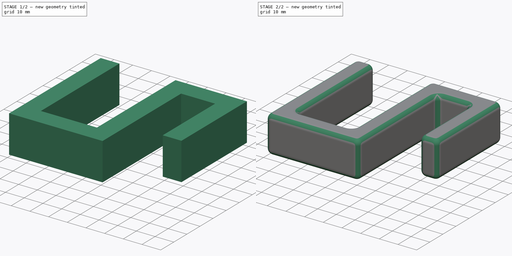
[diagram: build sequence overview — one tinted view per stage of 2, left to right]
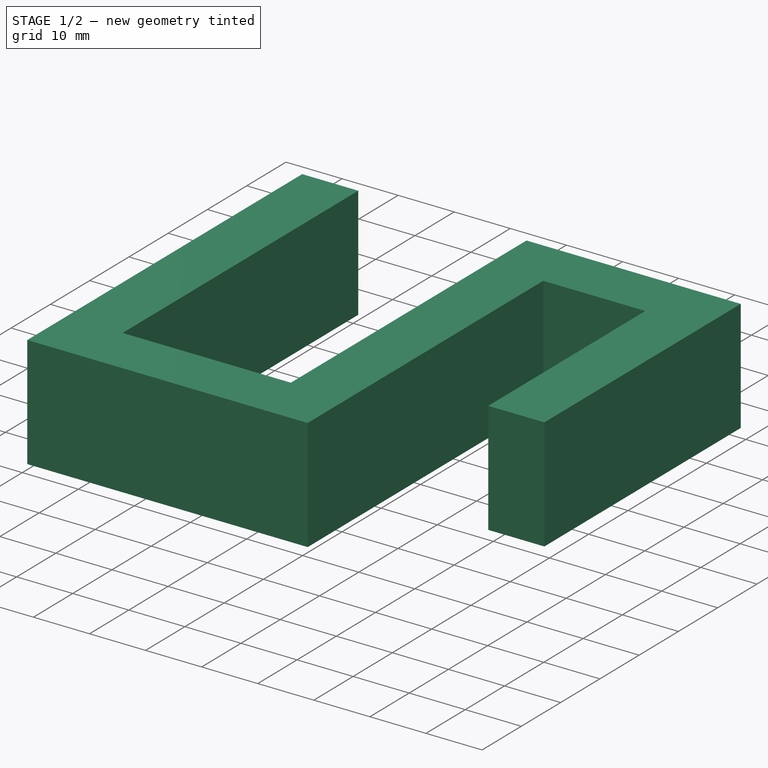
[diagram: stage 1 of 2 — iso view after this stage's code; geometry added in this stage tinted green]
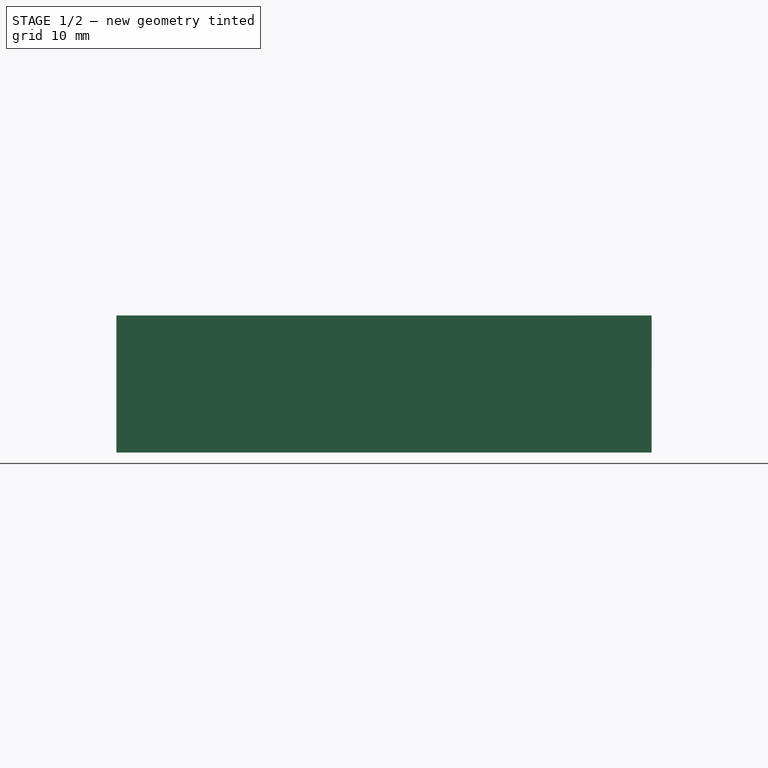
[diagram: stage 1 of 2 — front view after this stage's code; geometry added in this stage tinted green]
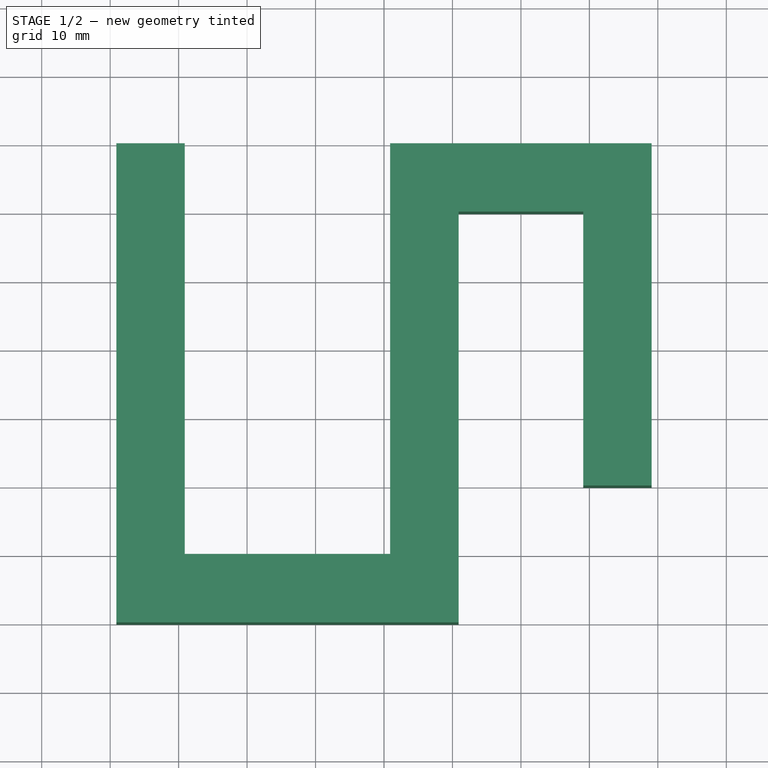
[diagram: stage 1 of 2 — top view after this stage's code; geometry added in this stage tinted green]
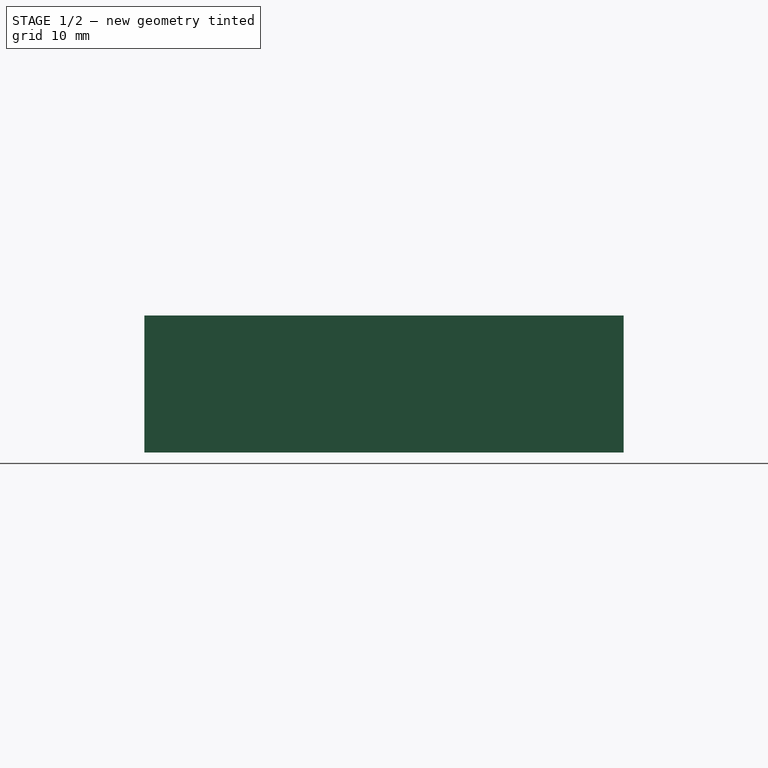
[diagram: stage 1 of 2 — right view after this stage's code; geometry added in this stage tinted green]
FCSTD DOCUMENT  (FreeCAD 1.0R39109 (Git))
Label: Model
License: All rights reserved
LicenseURL: https://en.wikipedia.org/wiki/All_rights_reserved
objects: Sketcher::SketchObject×1, PartDesign::Pad×1, PartDesign::Fillet×1, PartDesign::Body×1
note: 9 computed .brp shape members not serialized (recipe doc carries the construction recipe); baked Part::Feature solids carry a one-line shape summary decoded from their .brp

FEATURE [Sketcher::SketchObject] Sketch
  ArcFitTolerance = 1e-06
  AttachmentSupport = -> [XY_Plane]
  FullyConstrained = true
  MakeInternals = false
  MapMode = 5
  expr: Constraints[32] = 18.2 + 20
  sketch-geometry (12):
    g0: LineSegment StartX=9.1 StartY=0 StartZ=0 EndX=9.1 EndY=-40 EndZ=0
    g1: LineSegment StartX=9.1 StartY=-40 StartZ=0 EndX=19.1 EndY=-40 EndZ=0
    g2: LineSegment StartX=19.1 StartY=-40 StartZ=0 EndX=19.1 EndY=10 EndZ=0
    g3: LineSegment StartX=19.1 StartY=10 StartZ=0 EndX=-19.1 EndY=10 EndZ=0
    g4: LineSegment StartX=-19.1 StartY=10 StartZ=0 EndX=-19.1 EndY=-50 EndZ=0
    g5: LineSegment StartX=-19.1 StartY=-50 StartZ=0 EndX=-49.1 EndY=-50 EndZ=0
    g6: LineSegment StartX=-49.1 StartY=-50 StartZ=0 EndX=-49.1 EndY=10 EndZ=0
    g7: LineSegment StartX=-49.1 StartY=10 StartZ=0 EndX=-59.1 EndY=10 EndZ=0
    g8: LineSegment StartX=-59.1 StartY=10 StartZ=0 EndX=-59.1 EndY=-60 EndZ=0
    g9: LineSegment StartX=-59.1 StartY=-60 StartZ=0 EndX=-9.1 EndY=-60 EndZ=0
    g10: LineSegment StartX=-9.1 StartY=-60 StartZ=0 EndX=-9.1 EndY=0 EndZ=0
    g11: LineSegment StartX=-9.1 StartY=0 StartZ=0 EndX=9.1 EndY=0 EndZ=0
  constraints (35):
    c: PointOnObject(g0,g-1)
    c: Vertical(g0)
    c: Coincident(g0,g1)
    c: Horizontal(g1)
    c: Coincident(g1,g2)
    c: Vertical(g2)
    c: Coincident(g2,g3)
    c: Coincident(g3,g4)
    c: Vertical(g4)
    c: Coincident(g4,g5)
    c: Horizontal(g5)
    c: Coincident(g5,g6)
    c: Vertical(g6)
    c: Coincident(g6,g7)
    c: Horizontal(g7)
    c: Coincident(g7,g8)
    c: Vertical(g8)
    c: Coincident(g8,g9)
    c: Horizontal(g9)
    c: Coincident(g9,g10)
    c: Vertical(g10)
    c: Coincident(g10,g11)
    c: Coincident(g11,g0)
    c: DistanceY(g0,g0) = 40
    c: Distance(g11,g11) = 18.2
    c: Horizontal(g3)
    c: DistanceY(g2,g2) = 50
    c: Distance(g1,g1) = 10
    c: Symmetric(g10,g0,g-1)
    c: DistanceX(g5,g5) = 30
    c: DistanceY(g10,g10) = 60
    c: DistanceX(g9,g9) = 50
    c: Distance(g3,g3) = 38.2
    c: DistanceY(g4,g4) = 60
    c: Horizontal(g6,g3)
FEATURE [PartDesign::Pad] Pad
  Direction = (0,0,1)
  Length = 20
  Length2 = 10
  Profile = -> Sketch
  ReferenceAxis = -> Sketch [N_Axis]
  Refine = true
  Suppressed = false
  Type = 0
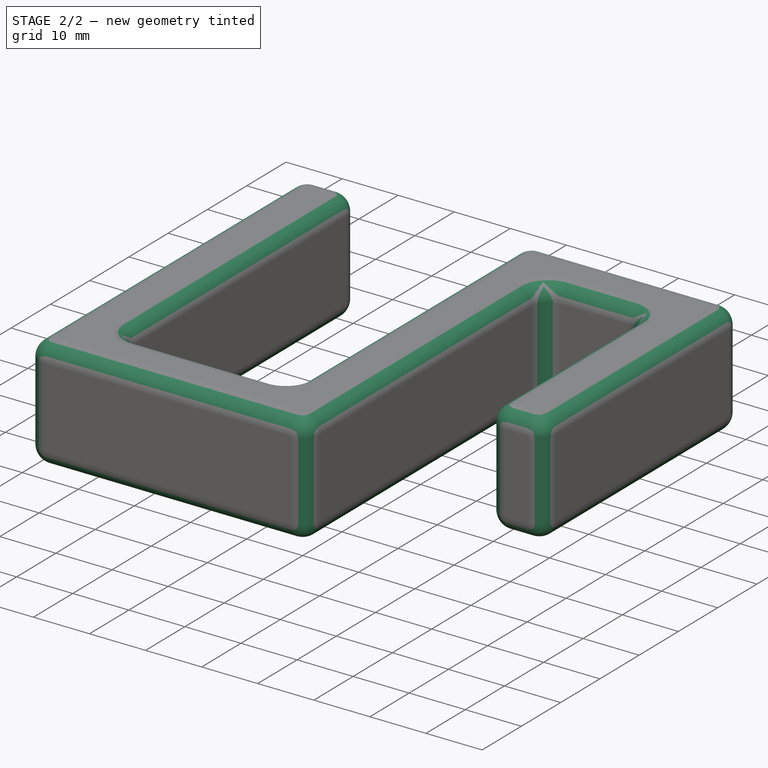
[diagram: stage 2 of 2 — iso view after this stage's code; geometry added in this stage tinted green]
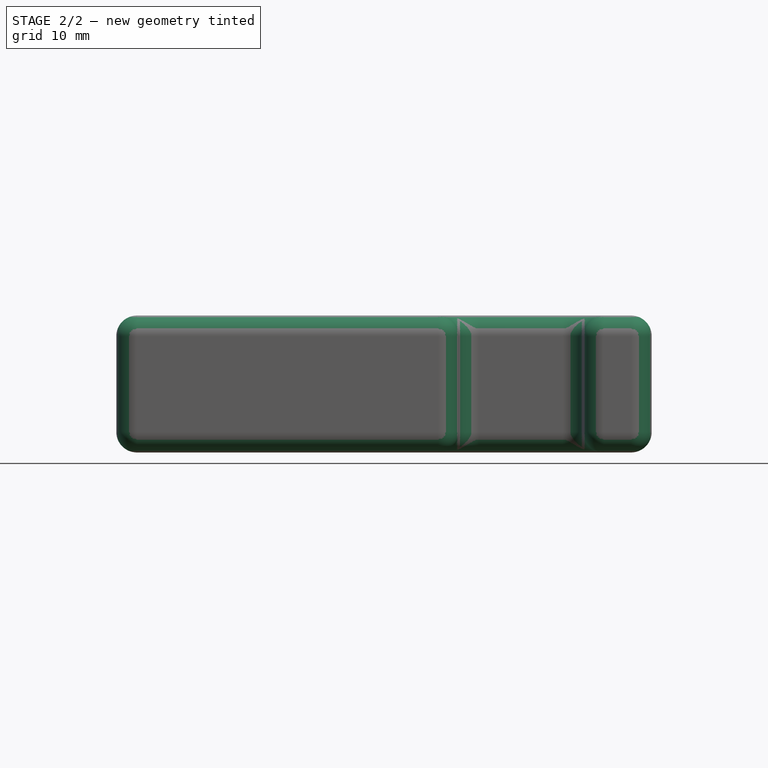
[diagram: stage 2 of 2 — front view after this stage's code; geometry added in this stage tinted green]
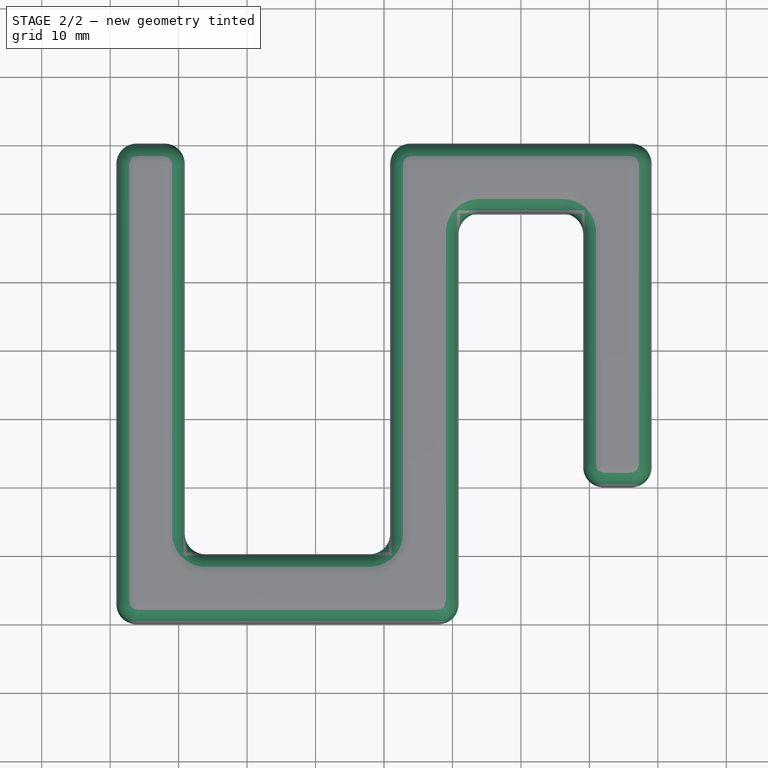
[diagram: stage 2 of 2 — top view after this stage's code; geometry added in this stage tinted green]
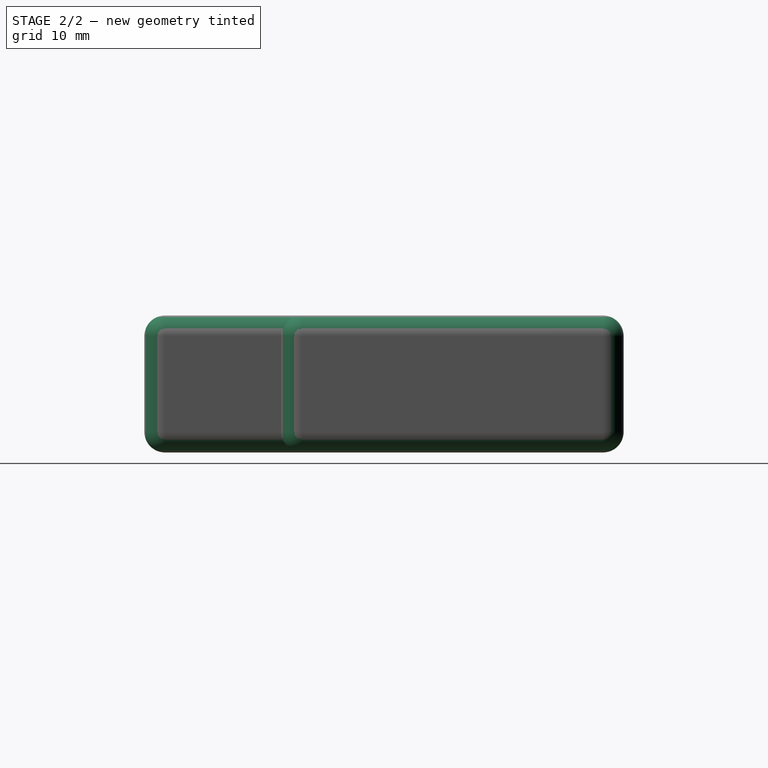
[diagram: stage 2 of 2 — right view after this stage's code; geometry added in this stage tinted green]
FEATURE [PartDesign::Fillet] Fillet
  Base = -> Pad [Edge28]
  BaseFeature = -> Pad
  Radius = 3
  Refine = true
  SupportTransform = false
  Suppressed = false
  UseAllEdges = true
FEATURE [PartDesign::Body] Body
  AllowCompound = false
  Group = -> [Sketch,Pad,Fillet]
  Origin = -> Origin
  Tip = -> Fillet
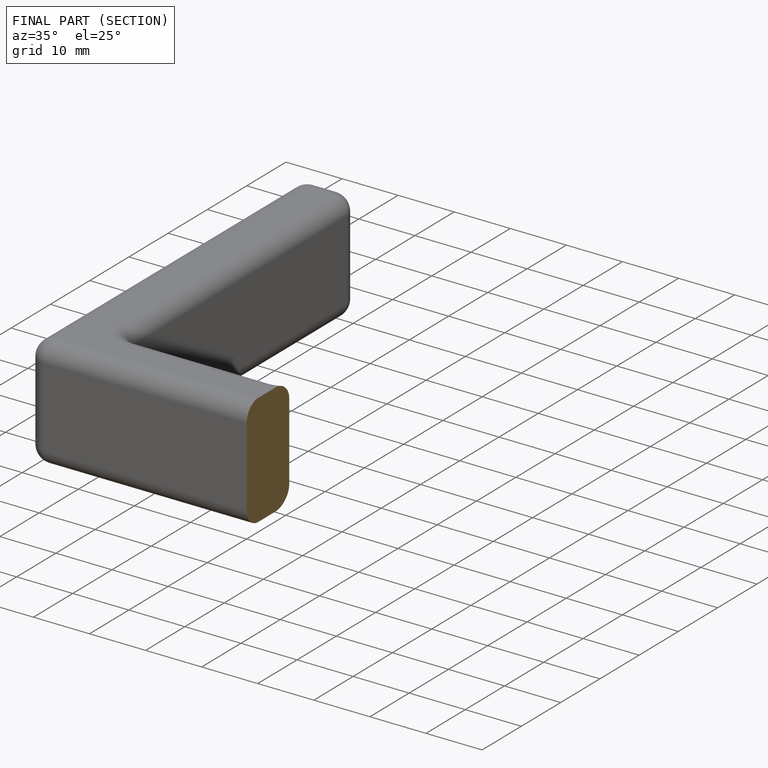
[diagram: finished part — half-section view (interior)]
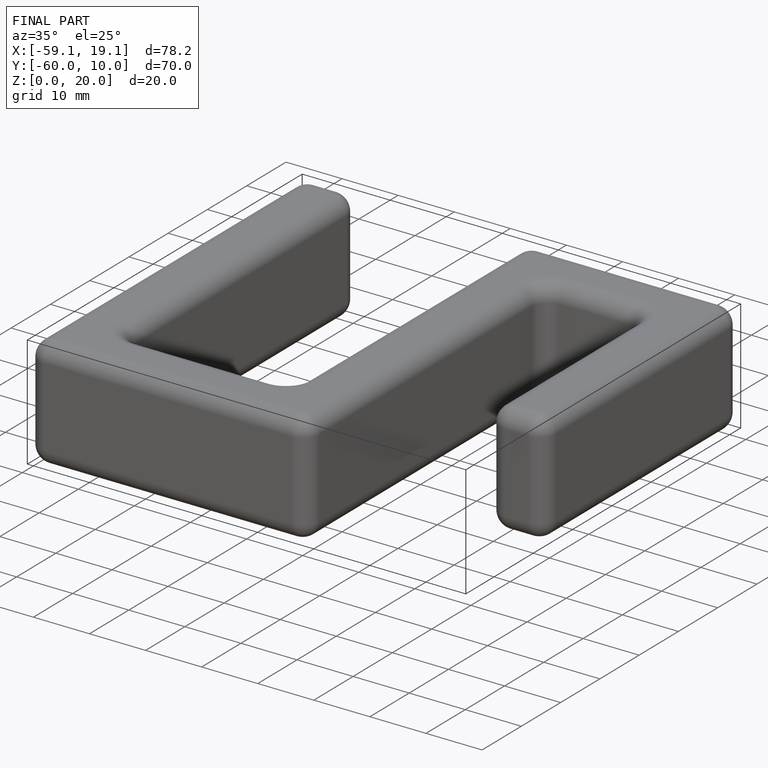
[diagram: finished part — iso view with bounding-box wireframe]
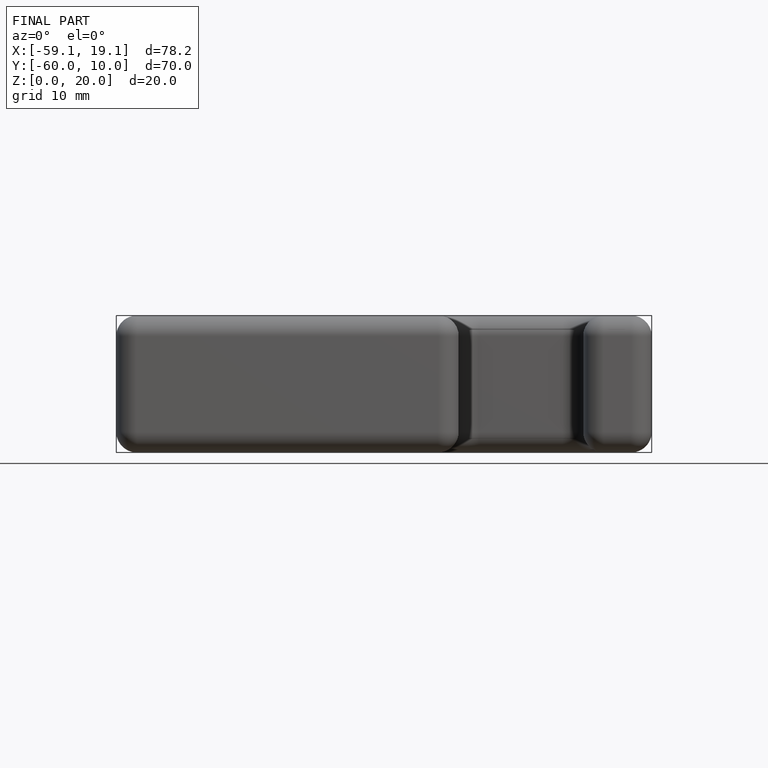
[diagram: finished part — front view with bounding-box wireframe]
